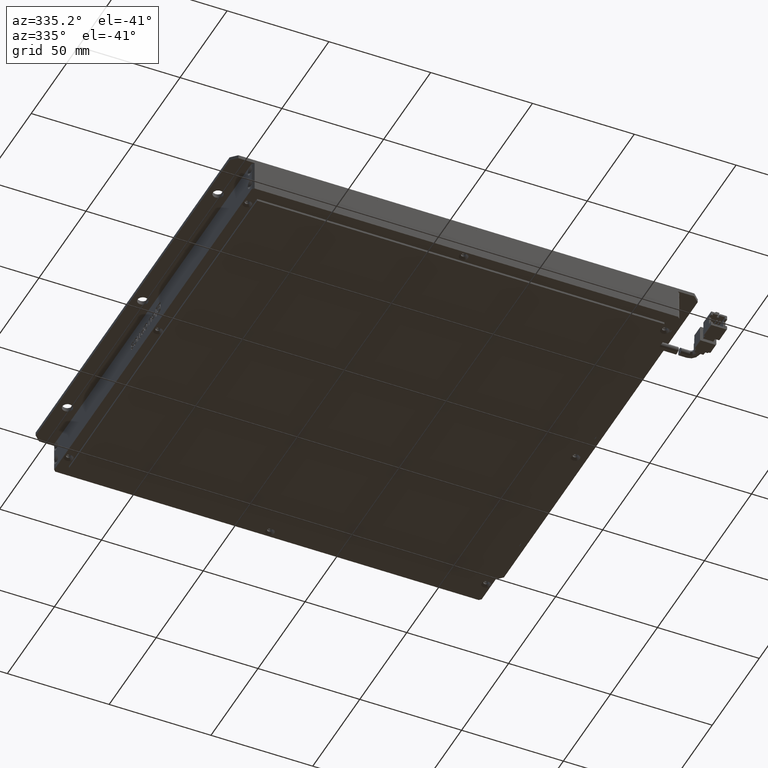
[diagram: clean part render]
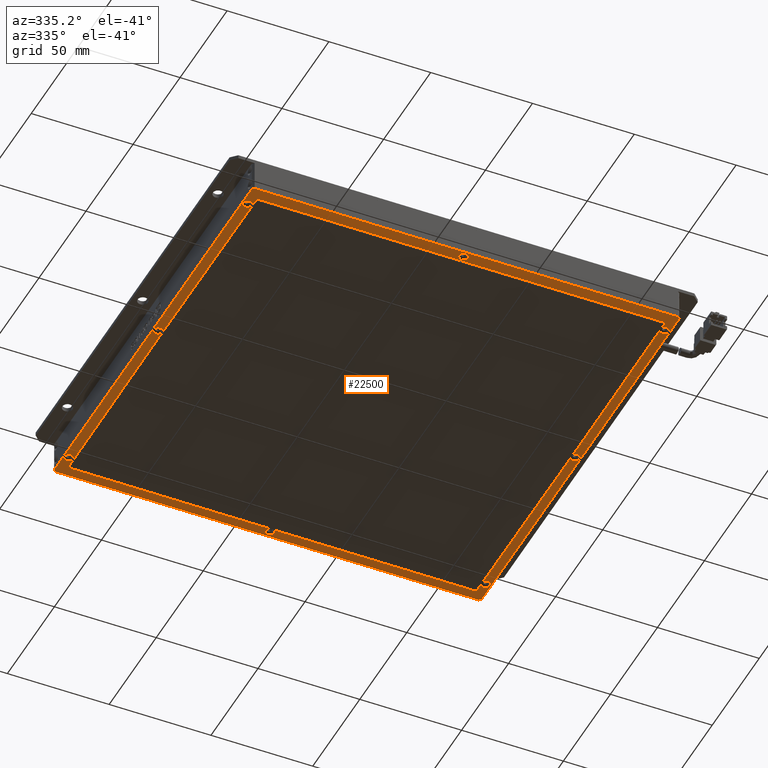
[diagram: same view with one face highlighted and labeled with its STEP entity id]
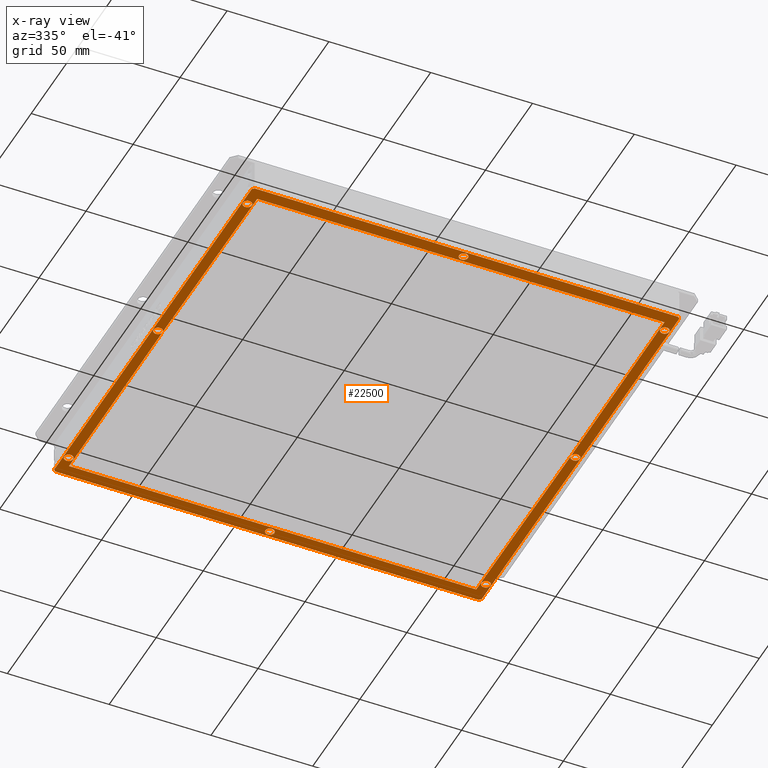
[diagram: x-ray of the same camera — body ghosted, the highlighted face saturated]
A machine part, auxiliary view. The second image highlights one B-rep face of the part: STEP entity #22500.
The next image is the same camera in x-ray: the body ghosted, the highlighted face saturated — about 0% of this face is hidden behind the body in this view.
In plain terms, the highlighted planar face has unit normal (0, 0, -1).
Its self-contained STEP definition (entity closure, byte-faithful):
#8 = ORIENTED_EDGE ( 'NONE', *, *, #1268, .T. ) ;
#503 = DIRECTION ( 'NONE',  ( 0.002999986500133816800, 0.9999955000303746300, -0.0000000000000000000 ) ) ;
#589 = CARTESIAN_POINT ( 'NONE',  ( 121.1657505824761500, 61.62124601721920000, -15.00000000003319500 ) ) ;
#651 = AXIS2_PLACEMENT_3D ( 'NONE', #20794, #5195, #22296 ) ;
#658 = DIRECTION ( 'NONE',  ( 1.000000000000000000, 0.0000000000000000000, 0.0000000000000000000 ) ) ;
#670 = LINE ( 'NONE', #3040, #4791 ) ;
#769 = VERTEX_POINT ( 'NONE', #19333 ) ;
#876 = EDGE_CURVE ( 'NONE', #3250, #6235, #15947, .T. ) ;
#927 = AXIS2_PLACEMENT_3D ( 'NONE', #8506, #22185, #10185 ) ;
#1116 = ORIENTED_EDGE ( 'NONE', *, *, #2588, .T. ) ;
#1201 = CARTESIAN_POINT ( 'NONE',  ( -85.33424941752389300, 72.62124601721917800, -15.00000000002364500 ) ) ;
#1204 = FACE_BOUND ( 'NONE', #6025, .T. ) ;
#1268 = EDGE_CURVE ( 'NONE', #8689, #7816, #16966, .T. ) ;
#1390 = ORIENTED_EDGE ( 'NONE', *, *, #14087, .T. ) ;
#1398 = ORIENTED_EDGE ( 'NONE', *, *, #17865, .T. ) ;
#1647 = CIRCLE ( 'NONE', #651, 2.199999999979801200 ) ;
#1660 = AXIS2_PLACEMENT_3D ( 'NONE', #2427, #13070, #9704 ) ;
#1681 = CARTESIAN_POINT ( 'NONE',  ( -83.83424941752386400, 61.62124601721920000, -14.99999999997635100 ) ) ;
#1924 = AXIS2_PLACEMENT_3D ( 'NONE', #17277, #13765, #3270 ) ;
#2041 = CARTESIAN_POINT ( 'NONE',  ( -81.33424941752386400, 66.62124601721917800, -15.00000000002364500 ) ) ;
#2077 = LINE ( 'NONE', #2582, #14392 ) ;
#2107 = DIRECTION ( 'NONE',  ( -0.0000000000000000000, -0.0000000000000000000, 1.000000000000000000 ) ) ;
#2202 = CARTESIAN_POINT ( 'NONE',  ( 118.9657505824963600, 61.62124601721920000, -15.00000000003319500 ) ) ;
#2238 = DIRECTION ( 'NONE',  ( 0.7071067811865376900, 0.7071067811865573400, 0.0000000000000000000 ) ) ;
#2361 = DIRECTION ( 'NONE',  ( -0.0000000000000000000, -0.0000000000000000000, 1.000000000000000000 ) ) ;
#2411 = LINE ( 'NONE', #11814, #20873 ) ;
#2427 = CARTESIAN_POINT ( 'NONE',  ( 18.66575058247614600, -136.3787539827807800, -14.99999999997635100 ) ) ;
#2486 = CARTESIAN_POINT ( 'NONE',  ( -81.63424941752812500, -33.37875398278074400, -15.00000000003319500 ) ) ;
#2582 = CARTESIAN_POINT ( 'NONE',  ( -86.33424941752385000, 72.62124601721919200, -15.00000000002364500 ) ) ;
#2588 = EDGE_CURVE ( 'NONE', #17265, #8287, #11767, .T. ) ;
#2759 = EDGE_CURVE ( 'NONE', #8534, #16324, #17667, .T. ) ;
#2858 = EDGE_CURVE ( 'NONE', #14862, #9735, #2411, .T. ) ;
#2872 = DIRECTION ( 'NONE',  ( -1.000000000000000000, -5.551115123125782700E-016, 0.0000000000000000000 ) ) ;
#2874 = ORIENTED_EDGE ( 'NONE', *, *, #13231, .T. ) ;
#2962 = LINE ( 'NONE', #11513, #21972 ) ;
#3009 = EDGE_LOOP ( 'NONE', ( #7571, #5539, #1390, #13836, #5534, #15810, #7468, #3887, #18030, #18417 ) ) ;
#3040 = CARTESIAN_POINT ( 'NONE',  ( -85.33424941752390700, -139.3787539827808100, -15.00000000002364500 ) ) ;
#3110 = DIRECTION ( 'NONE',  ( 0.0000000000000000000, 0.0000000000000000000, -1.000000000000000000 ) ) ;
#3221 = AXIS2_PLACEMENT_3D ( 'NONE', #11181, #5927, #12968 ) ;
#3250 = VERTEX_POINT ( 'NONE', #14136 ) ;
#3270 = DIRECTION ( 'NONE',  ( 1.000000000000000000, 0.0000000000000000000, 0.0000000000000000000 ) ) ;
#3293 = LINE ( 'NONE', #21137, #13960 ) ;
#3317 = VERTEX_POINT ( 'NONE', #3376 ) ;
#3331 = EDGE_CURVE ( 'NONE', #16324, #3317, #20314, .T. ) ;
#3376 = CARTESIAN_POINT ( 'NONE',  ( -86.03424941751959000, -33.37875398278074400, -15.00000000003319500 ) ) ;
#3412 = EDGE_CURVE ( 'NONE', #16324, #19653, #13861, .T. ) ;
#3878 = LINE ( 'NONE', #17280, #6361 ) ;
#3887 = ORIENTED_EDGE ( 'NONE', *, *, #19675, .T. ) ;
#4030 = CARTESIAN_POINT ( 'NONE',  ( 121.1657505824761500, -128.3787539827808100, -15.00000000003319500 ) ) ;
#4070 = DIRECTION ( 'NONE',  ( -0.0000000000000000000, -0.0000000000000000000, 1.000000000000000000 ) ) ;
#4152 = EDGE_LOOP ( 'NONE', ( #19235, #1398 ) ) ;
#4276 = VECTOR ( 'NONE', #19503, 1000.000000000000000 ) ;
#4330 = CARTESIAN_POINT ( 'NONE',  ( 118.6657505824761500, -133.3787539827806900, -15.00000000002364500 ) ) ;
#4374 = ORIENTED_EDGE ( 'NONE', *, *, #7180, .T. ) ;
#4417 = CARTESIAN_POINT ( 'NONE',  ( -86.33424941752386400, -138.3787539827808400, -15.00000000002364500 ) ) ;
#4554 = VERTEX_POINT ( 'NONE', #22035 ) ;
#4791 = VECTOR ( 'NONE', #16822, 1000.000000000000100 ) ;
#4891 = DIRECTION ( 'NONE',  ( 1.000000000000000000, 0.0000000000000000000, 0.0000000000000000000 ) ) ;
#5195 = DIRECTION ( 'NONE',  ( -0.0000000000000000000, -0.0000000000000000000, 1.000000000000000000 ) ) ;
#5223 = EDGE_CURVE ( 'NONE', #7986, #19335, #18126, .T. ) ;
#5533 = VERTEX_POINT ( 'NONE', #9251 ) ;
#5534 = ORIENTED_EDGE ( 'NONE', *, *, #5649, .F. ) ;
#5539 = ORIENTED_EDGE ( 'NONE', *, *, #3331, .T. ) ;
#5610 = LINE ( 'NONE', #4330, #18370 ) ;
#5649 = EDGE_CURVE ( 'NONE', #8779, #8534, #5610, .T. ) ;
#5882 = FACE_BOUND ( 'NONE', #3009, .T. ) ;
#5884 = CARTESIAN_POINT ( 'NONE',  ( -83.83424941752386400, -128.3787539827808100, -14.99999999997635100 ) ) ;
#5927 = DIRECTION ( 'NONE',  ( -0.0000000000000000000, -0.0000000000000000000, 1.000000000000000000 ) ) ;
#5944 = AXIS2_PLACEMENT_3D ( 'NONE', #6666, #18940, #8417 ) ;
#5984 = ORIENTED_EDGE ( 'NONE', *, *, #19764, .T. ) ;
#6025 = EDGE_LOOP ( 'NONE', ( #4374, #10173 ) ) ;
#6144 = AXIS2_PLACEMENT_3D ( 'NONE', #6870, #22472, #12167 ) ;
#6229 = EDGE_CURVE ( 'NONE', #7816, #8689, #19906, .T. ) ;
#6235 = VERTEX_POINT ( 'NONE', #17074 ) ;
#6361 = VECTOR ( 'NONE', #10597, 1000.000000000000000 ) ;
#6666 = CARTESIAN_POINT ( 'NONE',  ( -83.83424941752386400, 61.62124601721920000, -14.99999999997635100 ) ) ;
#6708 = EDGE_CURVE ( 'NONE', #10727, #10407, #1647, .T. ) ;
#6715 = DIRECTION ( 'NONE',  ( 0.002999986500133818500, -0.9999955000303746300, 0.0000000000000000000 ) ) ;
#6827 = ORIENTED_EDGE ( 'NONE', *, *, #8998, .T. ) ;
#6866 = CARTESIAN_POINT ( 'NONE',  ( 20.86575058249233500, 69.62124601721919200, -14.99999999997635100 ) ) ;
#6870 = CARTESIAN_POINT ( 'NONE',  ( -83.83424941752386400, -33.37875398278074400, -15.00000000003319500 ) ) ;
#7096 = EDGE_CURVE ( 'NONE', #15715, #4554, #7636, .T. ) ;
#7170 = CARTESIAN_POINT ( 'NONE',  ( 123.3657505824559600, -128.3787539827808100, -15.00000000003319500 ) ) ;
#7180 = EDGE_CURVE ( 'NONE', #6235, #3250, #21443, .T. ) ;
#7199 = CARTESIAN_POINT ( 'NONE',  ( -83.83424941752386400, -128.3787539827808100, -14.99999999997635100 ) ) ;
#7202 = EDGE_CURVE ( 'NONE', #10407, #10727, #9847, .T. ) ;
#7352 = LINE ( 'NONE', #16247, #10400 ) ;
#7391 = CARTESIAN_POINT ( 'NONE',  ( 121.1657505824761500, -33.37875398278074400, -15.00000000003319500 ) ) ;
#7468 = ORIENTED_EDGE ( 'NONE', *, *, #16651, .T. ) ;
#7571 = ORIENTED_EDGE ( 'NONE', *, *, #3412, .F. ) ;
#7636 = CIRCLE ( 'NONE', #12508, 2.199999999979801200 ) ;
#7671 = CARTESIAN_POINT ( 'NONE',  ( -85.33424941752386400, -139.3787539827808400, -15.00000000002364500 ) ) ;
#7699 = DIRECTION ( 'NONE',  ( -0.002999986500133813800, -0.9999955000303746300, -0.0000000000000000000 ) ) ;
#7715 = ORIENTED_EDGE ( 'NONE', *, *, #18511, .T. ) ;
#7816 = VERTEX_POINT ( 'NONE', #12972 ) ;
#7931 = DIRECTION ( 'NONE',  ( 1.000000000000000000, 0.0000000000000000000, 0.0000000000000000000 ) ) ;
#7984 = LINE ( 'NONE', #11354, #19925 ) ;
#7986 = VERTEX_POINT ( 'NONE', #20328 ) ;
#8071 = FACE_BOUND ( 'NONE', #13155, .T. ) ;
#8287 = VERTEX_POINT ( 'NONE', #16113 ) ;
#8377 = VERTEX_POINT ( 'NONE', #15143 ) ;
#8417 = DIRECTION ( 'NONE',  ( 1.000000000000000000, 0.0000000000000000000, 0.0000000000000000000 ) ) ;
#8456 = VERTEX_POINT ( 'NONE', #14909 ) ;
#8506 = CARTESIAN_POINT ( 'NONE',  ( 18.66575058247614600, -136.3787539827807800, -14.99999999997635100 ) ) ;
#8534 = VERTEX_POINT ( 'NONE', #13487 ) ;
#8665 = CIRCLE ( 'NONE', #5944, 2.199999999995733400 ) ;
#8689 = VERTEX_POINT ( 'NONE', #10394 ) ;
#8779 = VERTEX_POINT ( 'NONE', #14072 ) ;
#8918 = CARTESIAN_POINT ( 'NONE',  ( 122.6657505824761200, 72.62124601721920700, -15.00000000002364500 ) ) ;
#8934 = LINE ( 'NONE', #9382, #4276 ) ;
#8998 = EDGE_CURVE ( 'NONE', #20344, #5533, #2077, .T. ) ;
#9021 = DIRECTION ( 'NONE',  ( -0.0000000000000000000, -0.0000000000000000000, 1.000000000000000000 ) ) ;
#9173 = AXIS2_PLACEMENT_3D ( 'NONE', #18941, #10320, #22395 ) ;
#9184 = FACE_BOUND ( 'NONE', #4152, .T. ) ;
#9251 = CARTESIAN_POINT ( 'NONE',  ( 122.6657505824761400, 72.62124601721917800, -15.00000000002364500 ) ) ;
#9382 = CARTESIAN_POINT ( 'NONE',  ( 123.6657505824761500, -138.3787539827808400, -15.00000000002364500 ) ) ;
#9442 = FACE_OUTER_BOUND ( 'NONE', #11589, .T. ) ;
#9471 = CIRCLE ( 'NONE', #11812, 2.200000000036644600 ) ;
#9704 = DIRECTION ( 'NONE',  ( 1.000000000000000000, 0.0000000000000000000, 0.0000000000000000000 ) ) ;
#9735 = VERTEX_POINT ( 'NONE', #7671 ) ;
#9827 = DIRECTION ( 'NONE',  ( -0.002999986500133812500, 0.9999955000303746300, 0.0000000000000000000 ) ) ;
#9847 = CIRCLE ( 'NONE', #20887, 2.199999999979801200 ) ;
#10065 = PLANE ( 'NONE',  #17953 ) ;
#10118 = CIRCLE ( 'NONE', #3221, 2.200000000036644600 ) ;
#10173 = ORIENTED_EDGE ( 'NONE', *, *, #876, .T. ) ;
#10185 = DIRECTION ( 'NONE',  ( 1.000000000000000000, 0.0000000000000000000, 0.0000000000000000000 ) ) ;
#10320 = DIRECTION ( 'NONE',  ( -0.0000000000000000000, -0.0000000000000000000, 1.000000000000000000 ) ) ;
#10394 = CARTESIAN_POINT ( 'NONE',  ( 16.46575058245995700, -136.3787539827807800, -14.99999999997635100 ) ) ;
#10400 = VECTOR ( 'NONE', #7699, 1000.000000000000200 ) ;
#10407 = VERTEX_POINT ( 'NONE', #11786 ) ;
#10501 = CARTESIAN_POINT ( 'NONE',  ( 122.6657505824761200, -139.3787539827808400, -15.00000000002364500 ) ) ;
#10508 = AXIS2_PLACEMENT_3D ( 'NONE', #1681, #14073, #22476 ) ;
#10597 = DIRECTION ( 'NONE',  ( 1.000000000000000000, 6.938893903907228400E-017, -0.0000000000000000000 ) ) ;
#10663 = ORIENTED_EDGE ( 'NONE', *, *, #7202, .T. ) ;
#10727 = VERTEX_POINT ( 'NONE', #7170 ) ;
#10895 = VERTEX_POINT ( 'NONE', #4417 ) ;
#11062 = DIRECTION ( 'NONE',  ( 1.000000000000000000, 0.0000000000000000000, 0.0000000000000000000 ) ) ;
#11136 = DIRECTION ( 'NONE',  ( 1.000000000000000000, 0.0000000000000000000, 0.0000000000000000000 ) ) ;
#11181 = CARTESIAN_POINT ( 'NONE',  ( 121.1657505824761500, -33.37875398278074400, -15.00000000003319500 ) ) ;
#11354 = CARTESIAN_POINT ( 'NONE',  ( 123.6657505824761400, 72.62124601721919200, -15.00000000002364500 ) ) ;
#11370 = VECTOR ( 'NONE', #6715, 1000.000000000000200 ) ;
#11506 = CIRCLE ( 'NONE', #15106, 2.200000000016189000 ) ;
#11513 = CARTESIAN_POINT ( 'NONE',  ( -86.33424941752385000, 72.62124601721919200, -15.00000000002364500 ) ) ;
#11589 = EDGE_LOOP ( 'NONE', ( #7715, #12294, #6827, #13308, #2874, #12065, #13971, #20701 ) ) ;
#11661 = DIRECTION ( 'NONE',  ( -1.000000000000000000, -0.0000000000000000000, -0.0000000000000000000 ) ) ;
#11767 = CIRCLE ( 'NONE', #10508, 2.199999999995733400 ) ;
#11786 = CARTESIAN_POINT ( 'NONE',  ( 118.9657505824963600, -128.3787539827808100, -15.00000000003319500 ) ) ;
#11812 = AXIS2_PLACEMENT_3D ( 'NONE', #7391, #19452, #11062 ) ;
#11814 = CARTESIAN_POINT ( 'NONE',  ( -86.33424941752385000, -139.3787539827808100, -15.00000000002364500 ) ) ;
#11921 = AXIS2_PLACEMENT_3D ( 'NONE', #7199, #4070, #21423 ) ;
#11949 = VECTOR ( 'NONE', #503, 1000.000000000000100 ) ;
#12065 = ORIENTED_EDGE ( 'NONE', *, *, #14739, .T. ) ;
#12167 = DIRECTION ( 'NONE',  ( 1.000000000000000000, 0.0000000000000000000, 0.0000000000000000000 ) ) ;
#12294 = ORIENTED_EDGE ( 'NONE', *, *, #16554, .T. ) ;
#12508 = AXIS2_PLACEMENT_3D ( 'NONE', #20809, #9021, #21097 ) ;
#12588 = VERTEX_POINT ( 'NONE', #6866 ) ;
#12634 = ORIENTED_EDGE ( 'NONE', *, *, #6229, .T. ) ;
#12968 = DIRECTION ( 'NONE',  ( 1.000000000000000000, 0.0000000000000000000, 0.0000000000000000000 ) ) ;
#12972 = CARTESIAN_POINT ( 'NONE',  ( 20.86575058249233500, -136.3787539827807800, -14.99999999997635100 ) ) ;
#13062 = EDGE_CURVE ( 'NONE', #5533, #8456, #20992, .T. ) ;
#13070 = DIRECTION ( 'NONE',  ( -0.0000000000000000000, -0.0000000000000000000, 1.000000000000000000 ) ) ;
#13155 = EDGE_LOOP ( 'NONE', ( #12634, #8 ) ) ;
#13231 = EDGE_CURVE ( 'NONE', #8456, #8377, #7984, .T. ) ;
#13308 = ORIENTED_EDGE ( 'NONE', *, *, #13062, .T. ) ;
#13487 = CARTESIAN_POINT ( 'NONE',  ( -81.33424941752386400, -133.3787539827808100, -15.00000000002364500 ) ) ;
#13495 = VECTOR ( 'NONE', #15930, 999.9999999999998900 ) ;
#13625 = CARTESIAN_POINT ( 'NONE',  ( 18.66575058247614600, 69.62124601721919200, -14.99999999997635100 ) ) ;
#13697 = CARTESIAN_POINT ( 'NONE',  ( 118.6657505824761500, 66.62124601721919200, -15.00000000002364500 ) ) ;
#13765 = DIRECTION ( 'NONE',  ( -0.0000000000000000000, -0.0000000000000000000, 1.000000000000000000 ) ) ;
#13836 = ORIENTED_EDGE ( 'NONE', *, *, #2759, .F. ) ;
#13861 = LINE ( 'NONE', #14359, #11949 ) ;
#13960 = VECTOR ( 'NONE', #2238, 1000.000000000000100 ) ;
#13971 = ORIENTED_EDGE ( 'NONE', *, *, #2858, .T. ) ;
#14072 = CARTESIAN_POINT ( 'NONE',  ( 118.6657505824761500, -133.3787539827806900, -15.00000000002364500 ) ) ;
#14073 = DIRECTION ( 'NONE',  ( -0.0000000000000000000, -0.0000000000000000000, 1.000000000000000000 ) ) ;
#14087 = EDGE_CURVE ( 'NONE', #3317, #16324, #15020, .T. ) ;
#14136 = CARTESIAN_POINT ( 'NONE',  ( -86.03424941751959000, -128.3787539827808100, -14.99999999997635100 ) ) ;
#14359 = CARTESIAN_POINT ( 'NONE',  ( -81.33424941752386400, 66.62124601721917800, -15.00000000002364500 ) ) ;
#14392 = VECTOR ( 'NONE', #14669, 1000.000000000000000 ) ;
#14622 = FACE_BOUND ( 'NONE', #15104, .T. ) ;
#14669 = DIRECTION ( 'NONE',  ( 1.000000000000000000, -0.0000000000000000000, -0.0000000000000000000 ) ) ;
#14739 = EDGE_CURVE ( 'NONE', #8377, #14862, #8934, .T. ) ;
#14862 = VERTEX_POINT ( 'NONE', #10501 ) ;
#14909 = CARTESIAN_POINT ( 'NONE',  ( 123.6657505824761400, 71.62124601721922100, -15.00000000002364500 ) ) ;
#15020 = CIRCLE ( 'NONE', #9173, 2.199999999995733400 ) ;
#15104 = EDGE_LOOP ( 'NONE', ( #15846, #10663 ) ) ;
#15106 = AXIS2_PLACEMENT_3D ( 'NONE', #13625, #22465, #4891 ) ;
#15143 = CARTESIAN_POINT ( 'NONE',  ( 123.6657505824761400, -138.3787539827808400, -15.00000000002364500 ) ) ;
#15384 = CARTESIAN_POINT ( 'NONE',  ( 16.46575058245995700, 69.62124601721919200, -14.99999999997635100 ) ) ;
#15468 = DIRECTION ( 'NONE',  ( 1.000000000000000000, 0.0000000000000000000, 0.0000000000000000000 ) ) ;
#15715 = VERTEX_POINT ( 'NONE', #2202 ) ;
#15810 = ORIENTED_EDGE ( 'NONE', *, *, #18090, .F. ) ;
#15846 = ORIENTED_EDGE ( 'NONE', *, *, #6708, .T. ) ;
#15930 = DIRECTION ( 'NONE',  ( 0.7071067811865574500, -0.7071067811865376900, 0.0000000000000000000 ) ) ;
#15947 = CIRCLE ( 'NONE', #11921, 2.199999999995733400 ) ;
#16066 = EDGE_CURVE ( 'NONE', #19653, #7986, #3878, .T. ) ;
#16113 = CARTESIAN_POINT ( 'NONE',  ( -86.03424941751959000, 61.62124601721920000, -14.99999999997635100 ) ) ;
#16247 = CARTESIAN_POINT ( 'NONE',  ( 118.6657505824761500, -133.3787539827806900, -15.00000000002364500 ) ) ;
#16324 = VERTEX_POINT ( 'NONE', #2486 ) ;
#16554 = EDGE_CURVE ( 'NONE', #769, #20344, #3293, .T. ) ;
#16651 = EDGE_CURVE ( 'NONE', #19335, #18236, #10118, .T. ) ;
#16653 = CARTESIAN_POINT ( 'NONE',  ( -81.33424941752386400, -133.3787539827808100, -15.00000000002364500 ) ) ;
#16822 = DIRECTION ( 'NONE',  ( -0.7071067811865474600, 0.7071067811865474600, -0.0000000000000000000 ) ) ;
#16839 = VERTEX_POINT ( 'NONE', #15384 ) ;
#16966 = CIRCLE ( 'NONE', #1660, 2.200000000016189000 ) ;
#17041 = CIRCLE ( 'NONE', #18735, 2.199999999979801200 ) ;
#17074 = CARTESIAN_POINT ( 'NONE',  ( -81.63424941752812500, -128.3787539827808100, -14.99999999997635100 ) ) ;
#17265 = VERTEX_POINT ( 'NONE', #21572 ) ;
#17277 = CARTESIAN_POINT ( 'NONE',  ( 18.66575058247614600, 69.62124601721919200, -14.99999999997635100 ) ) ;
#17280 = CARTESIAN_POINT ( 'NONE',  ( 118.6657505824761500, 66.62124601721919200, -15.00000000002364500 ) ) ;
#17567 = FACE_BOUND ( 'NONE', #19531, .T. ) ;
#17667 = LINE ( 'NONE', #16653, #19003 ) ;
#17865 = EDGE_CURVE ( 'NONE', #16839, #12588, #11506, .T. ) ;
#17953 = AXIS2_PLACEMENT_3D ( 'NONE', #22137, #3110, #15468 ) ;
#18030 = ORIENTED_EDGE ( 'NONE', *, *, #5223, .F. ) ;
#18090 = EDGE_CURVE ( 'NONE', #19335, #8779, #7352, .T. ) ;
#18096 = FACE_BOUND ( 'NONE', #20306, .T. ) ;
#18126 = LINE ( 'NONE', #13697, #11370 ) ;
#18144 = DIRECTION ( 'NONE',  ( -0.0000000000000000000, -1.000000000000000000, 0.0000000000000000000 ) ) ;
#18211 = EDGE_CURVE ( 'NONE', #12588, #16839, #20924, .T. ) ;
#18236 = VERTEX_POINT ( 'NONE', #20205 ) ;
#18305 = DIRECTION ( 'NONE',  ( -0.0000000000000000000, 1.000000000000000000, -0.0000000000000000000 ) ) ;
#18370 = VECTOR ( 'NONE', #2872, 1000.000000000000000 ) ;
#18417 = ORIENTED_EDGE ( 'NONE', *, *, #16066, .F. ) ;
#18511 = EDGE_CURVE ( 'NONE', #10895, #769, #2962, .T. ) ;
#18735 = AXIS2_PLACEMENT_3D ( 'NONE', #589, #2361, #7931 ) ;
#18940 = DIRECTION ( 'NONE',  ( -0.0000000000000000000, -0.0000000000000000000, 1.000000000000000000 ) ) ;
#18941 = CARTESIAN_POINT ( 'NONE',  ( -83.83424941752386400, -33.37875398278074400, -15.00000000003319500 ) ) ;
#19003 = VECTOR ( 'NONE', #9827, 1000.000000000000200 ) ;
#19020 = AXIS2_PLACEMENT_3D ( 'NONE', #5884, #2107, #11136 ) ;
#19235 = ORIENTED_EDGE ( 'NONE', *, *, #18211, .T. ) ;
#19333 = CARTESIAN_POINT ( 'NONE',  ( -86.33424941752386400, 71.62124601721920700, -15.00000000002364500 ) ) ;
#19335 = VERTEX_POINT ( 'NONE', #20007 ) ;
#19452 = DIRECTION ( 'NONE',  ( -0.0000000000000000000, -0.0000000000000000000, 1.000000000000000000 ) ) ;
#19496 = EDGE_CURVE ( 'NONE', #8287, #17265, #8665, .T. ) ;
#19503 = DIRECTION ( 'NONE',  ( -0.7071067811865622300, -0.7071067811865328100, 0.0000000000000000000 ) ) ;
#19531 = EDGE_LOOP ( 'NONE', ( #1116, #20277 ) ) ;
#19653 = VERTEX_POINT ( 'NONE', #2041 ) ;
#19675 = EDGE_CURVE ( 'NONE', #18236, #19335, #9471, .T. ) ;
#19764 = EDGE_CURVE ( 'NONE', #4554, #15715, #17041, .T. ) ;
#19904 = EDGE_CURVE ( 'NONE', #9735, #10895, #670, .T. ) ;
#19906 = CIRCLE ( 'NONE', #927, 2.200000000016189000 ) ;
#19925 = VECTOR ( 'NONE', #18144, 1000.000000000000000 ) ;
#20007 = CARTESIAN_POINT ( 'NONE',  ( 118.9657505824395100, -33.37875398278068700, -15.00000000003319500 ) ) ;
#20205 = CARTESIAN_POINT ( 'NONE',  ( 123.3657505825128000, -33.37875398278074400, -15.00000000003319500 ) ) ;
#20277 = ORIENTED_EDGE ( 'NONE', *, *, #19496, .T. ) ;
#20306 = EDGE_LOOP ( 'NONE', ( #5984, #20649 ) ) ;
#20314 = CIRCLE ( 'NONE', #6144, 2.199999999995733400 ) ;
#20328 = CARTESIAN_POINT ( 'NONE',  ( 118.6657505824761500, 66.62124601721919200, -15.00000000002364500 ) ) ;
#20344 = VERTEX_POINT ( 'NONE', #1201 ) ;
#20649 = ORIENTED_EDGE ( 'NONE', *, *, #7096, .T. ) ;
#20701 = ORIENTED_EDGE ( 'NONE', *, *, #19904, .T. ) ;
#20794 = CARTESIAN_POINT ( 'NONE',  ( 121.1657505824761500, -128.3787539827808100, -15.00000000003319500 ) ) ;
#20809 = CARTESIAN_POINT ( 'NONE',  ( 121.1657505824761500, 61.62124601721920000, -15.00000000003319500 ) ) ;
#20873 = VECTOR ( 'NONE', #11661, 1000.000000000000000 ) ;
#20887 = AXIS2_PLACEMENT_3D ( 'NONE', #4030, #21241, #658 ) ;
#20924 = CIRCLE ( 'NONE', #1924, 2.200000000016189000 ) ;
#20992 = LINE ( 'NONE', #8918, #13495 ) ;
#21097 = DIRECTION ( 'NONE',  ( 1.000000000000000000, 0.0000000000000000000, 0.0000000000000000000 ) ) ;
#21137 = CARTESIAN_POINT ( 'NONE',  ( -86.33424941752387800, 71.62124601721920700, -15.00000000002364500 ) ) ;
#21241 = DIRECTION ( 'NONE',  ( -0.0000000000000000000, -0.0000000000000000000, 1.000000000000000000 ) ) ;
#21423 = DIRECTION ( 'NONE',  ( 1.000000000000000000, 0.0000000000000000000, 0.0000000000000000000 ) ) ;
#21443 = CIRCLE ( 'NONE', #19020, 2.199999999995733400 ) ;
#21572 = CARTESIAN_POINT ( 'NONE',  ( -81.63424941752812500, 61.62124601721920000, -14.99999999997635100 ) ) ;
#21972 = VECTOR ( 'NONE', #18305, 1000.000000000000000 ) ;
#22035 = CARTESIAN_POINT ( 'NONE',  ( 123.3657505824559600, 61.62124601721920000, -15.00000000003319500 ) ) ;
#22137 = CARTESIAN_POINT ( 'NONE',  ( 123.6657505824761400, 72.62124601721919200, -15.00000000002364500 ) ) ;
#22185 = DIRECTION ( 'NONE',  ( -0.0000000000000000000, -0.0000000000000000000, 1.000000000000000000 ) ) ;
#22296 = DIRECTION ( 'NONE',  ( 1.000000000000000000, 0.0000000000000000000, 0.0000000000000000000 ) ) ;
#22395 = DIRECTION ( 'NONE',  ( 1.000000000000000000, 0.0000000000000000000, 0.0000000000000000000 ) ) ;
#22465 = DIRECTION ( 'NONE',  ( -0.0000000000000000000, -0.0000000000000000000, 1.000000000000000000 ) ) ;
#22472 = DIRECTION ( 'NONE',  ( -0.0000000000000000000, -0.0000000000000000000, 1.000000000000000000 ) ) ;
#22476 = DIRECTION ( 'NONE',  ( 1.000000000000000000, 0.0000000000000000000, 0.0000000000000000000 ) ) ;
#22500 = ADVANCED_FACE ( 'NONE', ( #5882, #9442, #9184, #8071, #14622, #18096, #1204, #17567 ), #10065, .T. ) ;